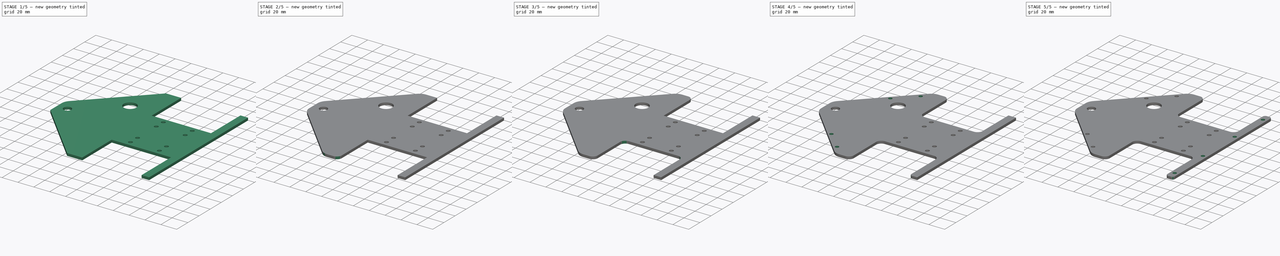
[diagram: build sequence overview — one tinted view per stage of 5, left to right]
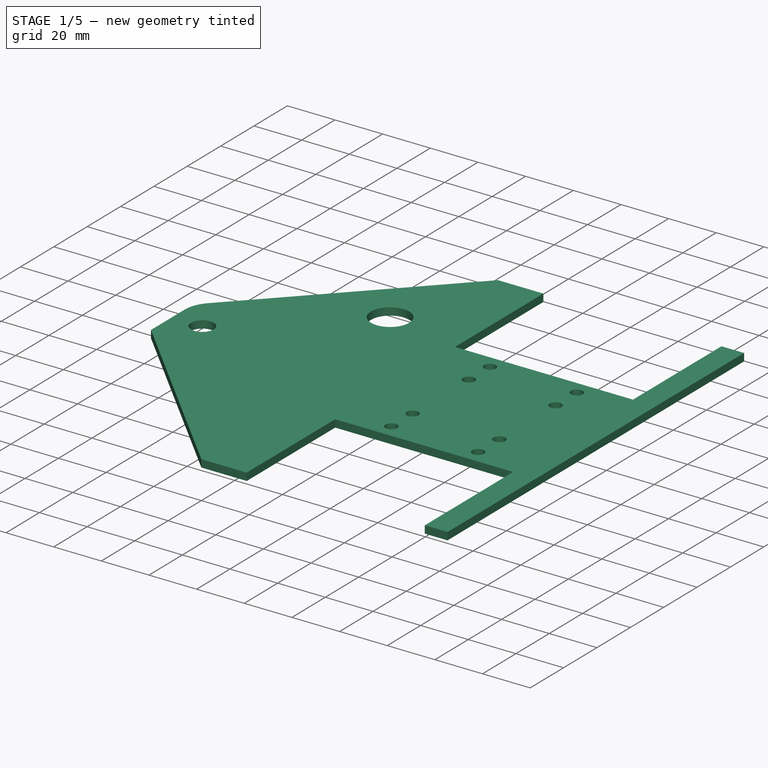
[diagram: stage 1 of 5 — iso view after this stage's code; geometry added in this stage tinted green]
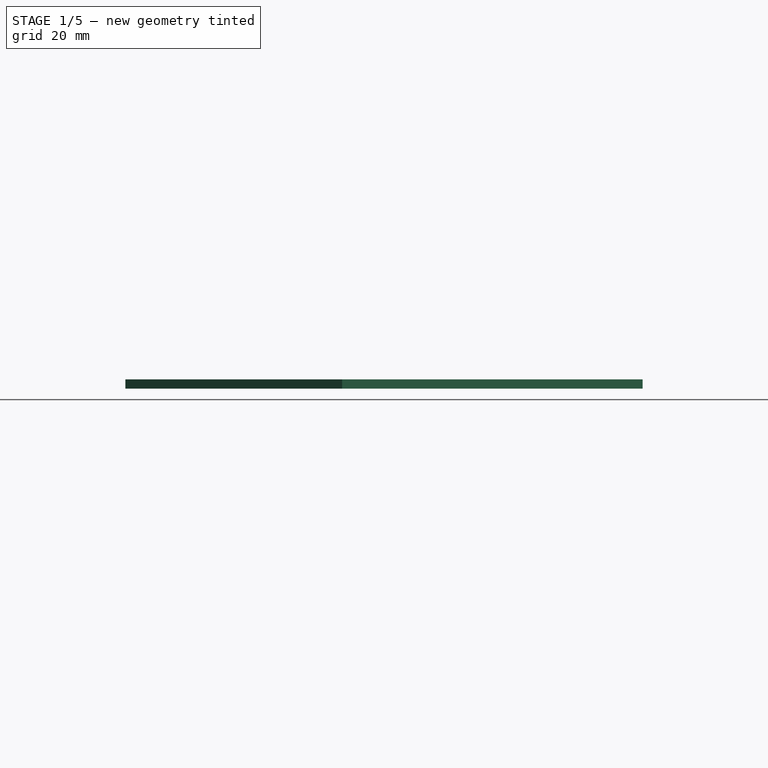
[diagram: stage 1 of 5 — front view after this stage's code; geometry added in this stage tinted green]
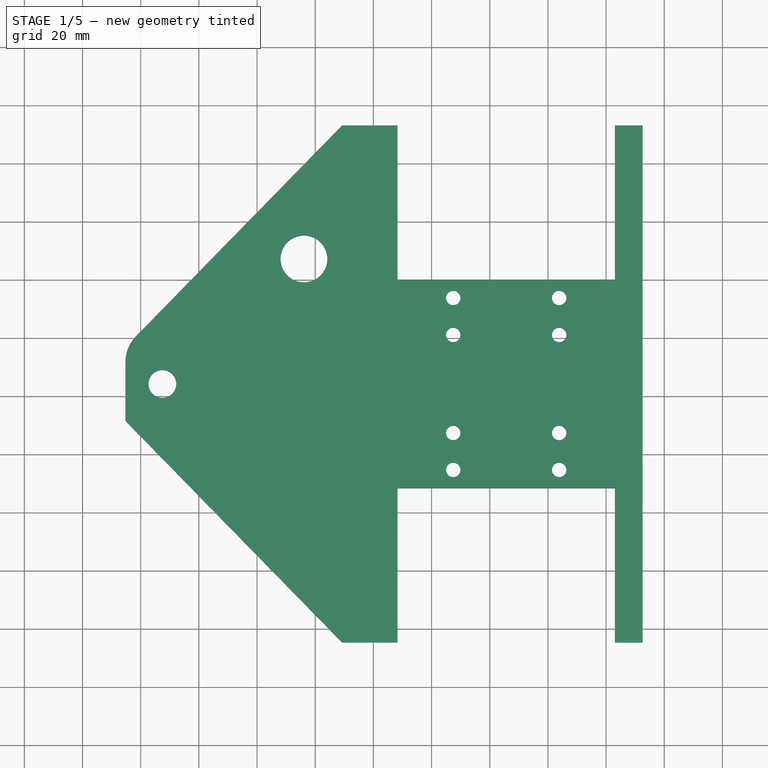
[diagram: stage 1 of 5 — top view after this stage's code; geometry added in this stage tinted green]
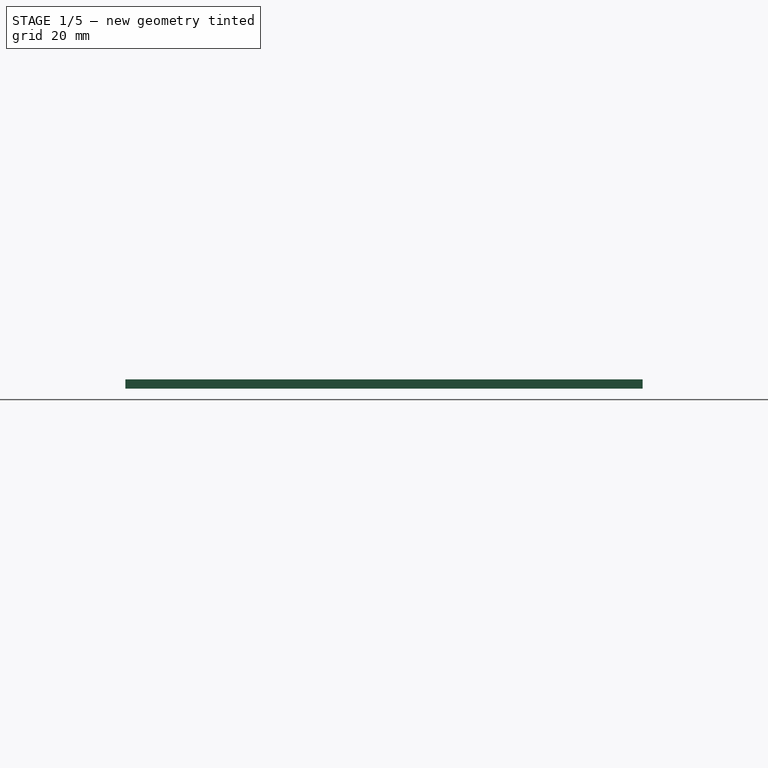
[diagram: stage 1 of 5 — right view after this stage's code; geometry added in this stage tinted green]
FCSTD DOCUMENT  (FreeCAD 0.15R4671 (Git))
Label: plate_bottom
License: All rights reserved
LicenseURL: http://en.wikipedia.org/wiki/All_rights_reserved
objects: PartDesign::Fillet×13, Sketcher::SketchObject×4, PartDesign::Pocket×3, App::DocumentObjectGroup×1, PartDesign::Pad×1
note: 25 computed .brp shape members not serialized (recipe doc carries the construction recipe); baked Part::Feature solids carry a one-line shape summary decoded from their .brp

FEATURE [App::DocumentObjectGroup] Group  label="plate"
FEATURE [Sketcher::SketchObject] Sketch
  Placement = pos=(-14.3421,44.2432,43.6758) rot=(0,0,1;0rad)
  sketch-geometry (17):
    g0: LineSegment StartX=37.364 StartY=35.9029 StartZ=0 EndX=-37.3628 EndY=35.9029 EndZ=0
    g1: LineSegment StartX=-37.3628 StartY=35.9029 StartZ=0 EndX=-37.3628 EndY=88.9 EndZ=0
    g2: LineSegment StartX=-37.3628 StartY=88.9 StartZ=0 EndX=-56.4128 EndY=88.9 EndZ=0
    g3: LineSegment StartX=-56.4128 StartY=88.9 StartZ=0 EndX=-130.912 EndY=12.7006 EndZ=0
    g4: LineSegment StartX=-130.912 StartY=12.7006 StartZ=0 EndX=-130.912 EndY=-12.6994 EndZ=0
    g5: LineSegment StartX=-130.912 StartY=-12.6994 StartZ=0 EndX=-56.414 EndY=-88.9 EndZ=0
    g6: LineSegment StartX=-56.414 StartY=-88.9 StartZ=0 EndX=-37.364 EndY=-88.9 EndZ=0
    g7: LineSegment StartX=-37.364 StartY=-88.9 StartZ=0 EndX=-37.364 EndY=-35.9029 EndZ=0
    g8: LineSegment StartX=-37.364 StartY=-35.9029 StartZ=0 EndX=37.3628 EndY=-35.9029 EndZ=0
    g9: LineSegment StartX=37.3628 StartY=-35.9029 StartZ=0 EndX=37.3628 EndY=-88.9 EndZ=0
    g10: LineSegment StartX=46.8878 StartY=-88.9 StartZ=0 EndX=46.8878 EndY=88.9 EndZ=0
    g11: LineSegment StartX=46.8878 StartY=88.9 StartZ=0 EndX=37.364 EndY=88.9 EndZ=0
    g12: LineSegment StartX=37.364 StartY=88.9 StartZ=0 EndX=37.364 EndY=35.9029 EndZ=0
    g13: GeomPoint [constr] X=-130.912 Y=0.000584 Z=0
    g14: LineSegment [constr] StartX=-130.912 StartY=0.000584 StartZ=0 EndX=-118.212 EndY=0.000584 EndZ=0
    g15: GeomPoint [constr] X=0 Y=35.9029 Z=0
    g16: LineSegment StartX=37.3628 StartY=-88.9 StartZ=0 EndX=46.8878 EndY=-88.9 EndZ=0
  constraints (46):
    c: Horizontal(g0)
    c: Coincident(g0,g1)
    c: Vertical(g1)
    c: Coincident(g1,g2)
    c: Horizontal(g2)
    c: Coincident(g2,g3)
    c: Coincident(g3,g4)
    c: Vertical(g4)
    c: Coincident(g4,g5)
    c: Coincident(g5,g6)
    c: Horizontal(g6)
    c: Coincident(g6,g7)
    c: Vertical(g7)
    c: Coincident(g7,g8)
    c: Horizontal(g8)
    c: Coincident(g8,g9)
    c: Vertical(g9)
    c: Vertical(g10)
    c: Coincident(g10,g11)
    c: Horizontal(g11)
    c: Coincident(g11,g12)
    c: Coincident(g12,g0)
    c: Vertical(g12)
    c: Equal(g12,g9)
    c: Equal(g1,g7)
    c: Equal(g2,g6)
    c: Equal(g3,g5)
    c: Equal(g8,g0)
    c: Equal(g12,g1)
    c: DistanceX(g6) = 19.05
    c: DistanceY(g10) = 177.8
    c: DistanceX(g9,g10) = 9.525
    c: DistanceX(g4,g10) = 177.8
    c: DistanceY(g4,g3) = 25.4
    c: Symmetric(g3,g4,g13)
    c: Horizontal(g14)
    c: DistanceX(g14) = 12.7
    c: Coincident(g14,g13)
    c: DistanceY(g0,g7) = -71.8058
    c: Symmetric(g0,g7,g-1)
    c: DistanceY(g3) = 12.7006
    c: DistanceX(g1,g11) = 74.7268
    c: PointOnObject(g15,g-2)
    c: Horizontal(g16)
    c: Coincident(g16,g10)
    c: Coincident(g16,g9)
FEATURE [PartDesign::Pad] Pad
  Length = 3.175
  Length2 = 100
  Placement = pos=(-14.3421,44.2432,43.6758) rot=(0,0,1;0rad)
  Sketch = -> Sketch
  Type = 0
FEATURE [Sketcher::SketchObject] Sketch001
  ExternalGeometry = -> [Pad]
  Placement = pos=(-14.3421,44.2432,46.8508) rot=(0,0,1;0rad)
  Support = -> Pad [Face16]
  sketch-geometry (14):
    g0: LineSegment [constr] StartX=-130.912 StartY=0.000584 StartZ=0 EndX=-69.5331 EndY=42.9787 EndZ=0
    g1: Circle CenterX=-69.5331 CenterY=42.9787 CenterZ=0 NormalX=0 NormalY=0 NormalZ=1 Radius=8.0264
    g2: Circle CenterX=-118.212 CenterY=0.000584 CenterZ=0 NormalX=0 NormalY=0 NormalZ=1 Radius=4.7625
    g3: LineSegment [constr] StartX=-18.2112 StartY=35.9029 StartZ=0 EndX=-18.2112 EndY=-35.9029 EndZ=0
    g4: LineSegment [constr] StartX=18.2124 StartY=35.9029 StartZ=0 EndX=18.2124 EndY=-35.9029 EndZ=0
    g5: GeomPoint [constr] X=0.000597336 Y=35.9029 Z=0
    g6: Circle CenterX=-18.2112 CenterY=29.5529 CenterZ=0 NormalX=0 NormalY=0 NormalZ=1 Radius=2.46634
    g7: Circle CenterX=18.2124 CenterY=29.5529 CenterZ=0 NormalX=0 NormalY=0 NormalZ=1 Radius=2.46634
    g8: Circle CenterX=-18.2112 CenterY=16.8529 CenterZ=0 NormalX=0 NormalY=0 NormalZ=1 Radius=2.46634
    g9: Circle CenterX=18.2124 CenterY=16.8529 CenterZ=0 NormalX=0 NormalY=0 NormalZ=1 Radius=2.46634
    g10: Circle CenterX=-18.2112 CenterY=-16.8529 CenterZ=0 NormalX=0 NormalY=0 NormalZ=1 Radius=2.46634
    g11: Circle CenterX=18.2124 CenterY=-16.8529 CenterZ=0 NormalX=0 NormalY=0 NormalZ=1 Radius=2.46634
    g12: Circle CenterX=-18.2112 CenterY=-29.5529 CenterZ=0 NormalX=0 NormalY=0 NormalZ=1 Radius=2.46634
    g13: Circle CenterX=18.2124 CenterY=-29.5529 CenterZ=0 NormalX=0 NormalY=0 NormalZ=1 Radius=2.46634
  constraints (41):
    c: Angle(g0) = 0.610865
    c: Distance(g0) = 74.93
    c: Radius(g1) = 8.0264
    c: Coincident(g1,g0)
    c: Radius(g2) = 4.7625
    c: Symmetric(g-3,g-3,g0)
    c: DistanceX(g2,g0) = -12.7
    c: DistanceY(g2,g0) = 0
    c: PointOnObject(g3,g-4)
    c: Vertical(g3)
    c: PointOnObject(g4,g-4)
    c: PointOnObject(g4,g-5)
    c: Vertical(g4)
    c: DistanceX(g3,g4) = 36.4236
    c: Symmetric(g-4,g-4,g5)
    c: Symmetric(g3,g4,g5)
    c: DistanceY(g3,g-5) = 0
    c: PointOnObject(g6,g3)
    c: PointOnObject(g7,g4)
    c: PointOnObject(g8,g3)
    c: PointOnObject(g9,g4)
    c: PointOnObject(g10,g3)
    c: PointOnObject(g11,g4)
    c: PointOnObject(g12,g3)
    c: PointOnObject(g13,g4)
    c: Radius(g13) = 2.46634
    c: Equal(g13,g11)
    c: Equal(g13,g9)
    c: Equal(g13,g7)
    c: Equal(g13,g6)
    c: Equal(g13,g8)
    c: Equal(g13,g10)
    c: Equal(g13,g12)
    c: DistanceY(g6,g3) = 6.35
    c: DistanceY(g8,g6) = 12.7
    c: DistanceY(g7,g4) = 6.35
    c: DistanceY(g9,g7) = 12.7
    c: DistanceY(g12,g-5) = -6.35
    c: DistanceY(g13,g-5) = -6.35
    c: DistanceY(g10,g12) = -12.7
    c: DistanceY(g11,g13) = -12.7
FEATURE [PartDesign::Pocket] Pocket
  Length = 0
  Placement = pos=(-14.3421,44.2432,43.6758) rot=(0,0,1;0rad)
  Sketch = -> Sketch001
  Type = 1
FEATURE [PartDesign::Fillet] Fillet
  Base = -> Pocket [Edge56]
  Placement = pos=(-14.3421,44.2432,43.6758) rot=(0,0,1;0rad)
  Radius = 12.7
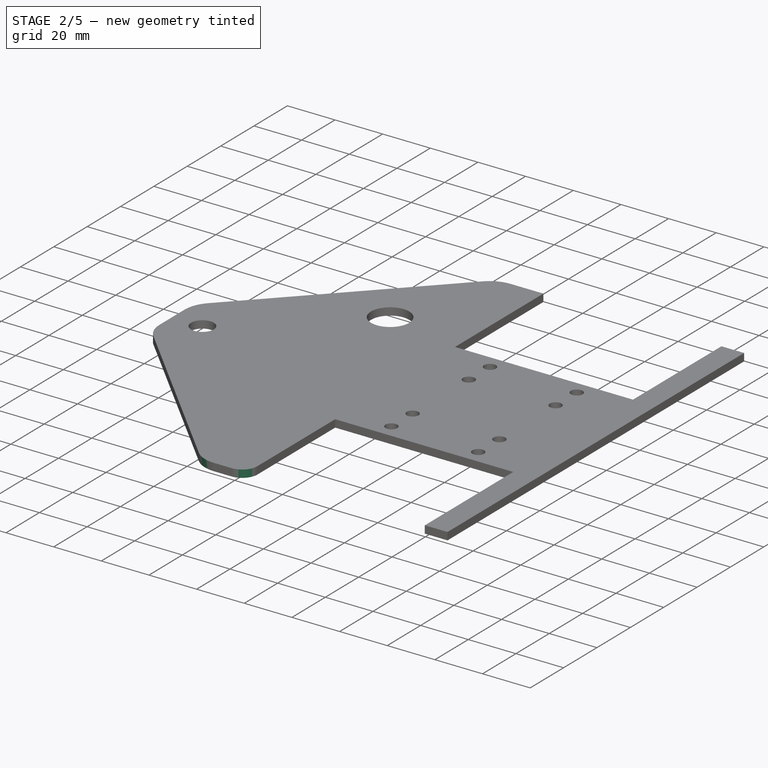
[diagram: stage 2 of 5 — iso view after this stage's code; geometry added in this stage tinted green]
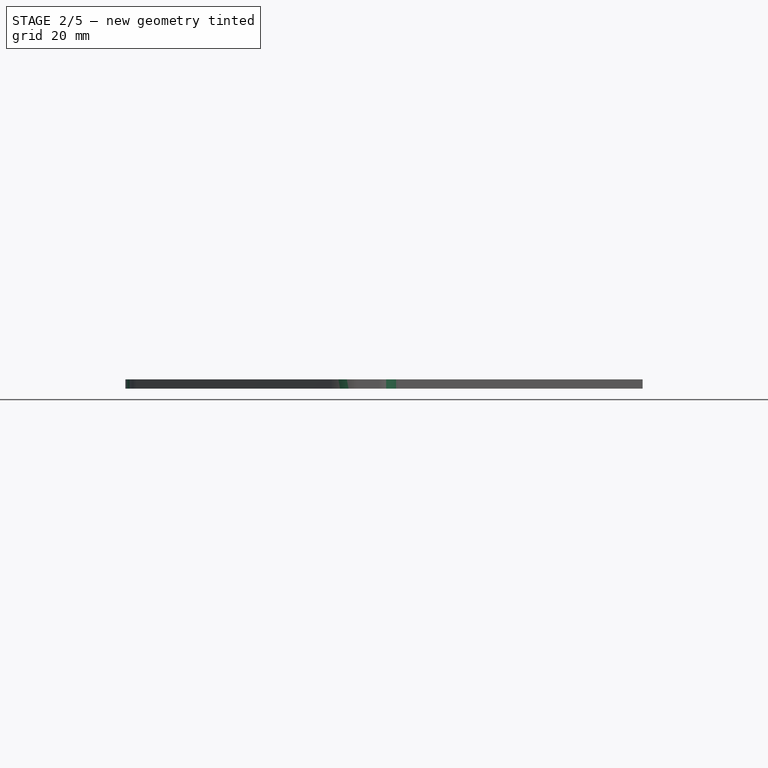
[diagram: stage 2 of 5 — front view after this stage's code; geometry added in this stage tinted green]
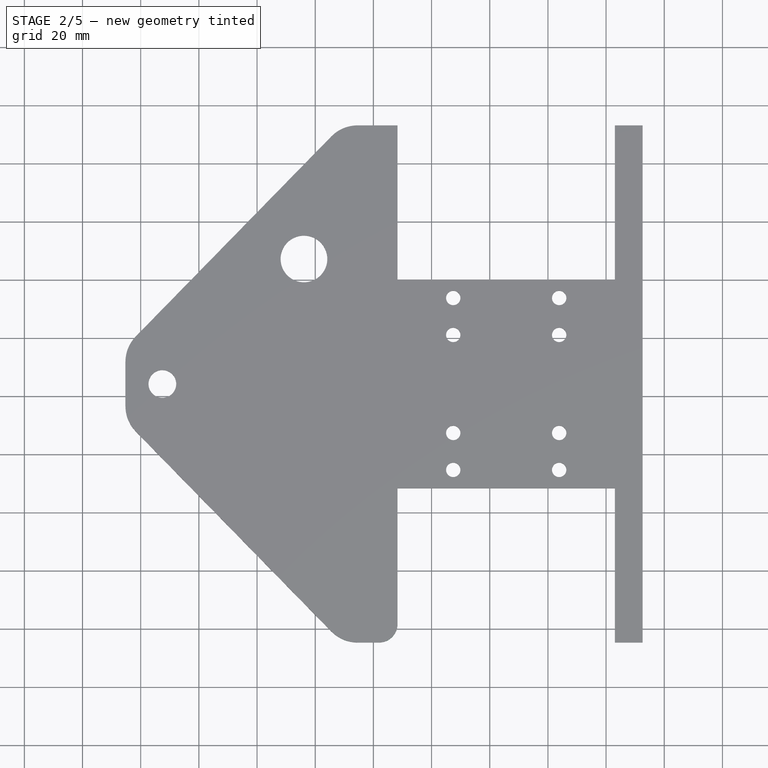
[diagram: stage 2 of 5 — top view after this stage's code; geometry added in this stage tinted green]
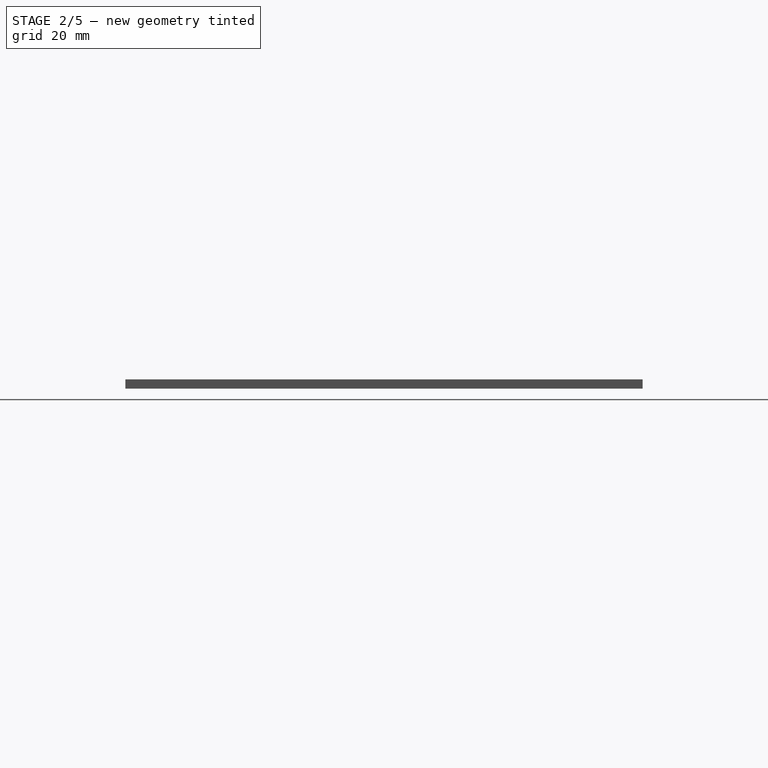
[diagram: stage 2 of 5 — right view after this stage's code; geometry added in this stage tinted green]
FEATURE [PartDesign::Fillet] Fillet001
  Base = -> Fillet [Edge33]
  Placement = pos=(-14.3421,44.2432,43.6758) rot=(0,0,1;0rad)
  Radius = 12.7
FEATURE [PartDesign::Fillet] Fillet002
  Base = -> Fillet001 [Edge34]
  Placement = pos=(-14.3421,44.2432,43.6758) rot=(0,0,1;0rad)
  Radius = 12.7
FEATURE [PartDesign::Fillet] Fillet003
  Base = -> Fillet002 [Edge45]
  Placement = pos=(-14.3421,44.2432,43.6758) rot=(0,0,1;0rad)
  Radius = 12.7
FEATURE [PartDesign::Fillet] Fillet004
  Base = -> Fillet003 [Edge54]
  Placement = pos=(-14.3421,44.2432,43.6758) rot=(0,0,1;0rad)
  Radius = 6.35
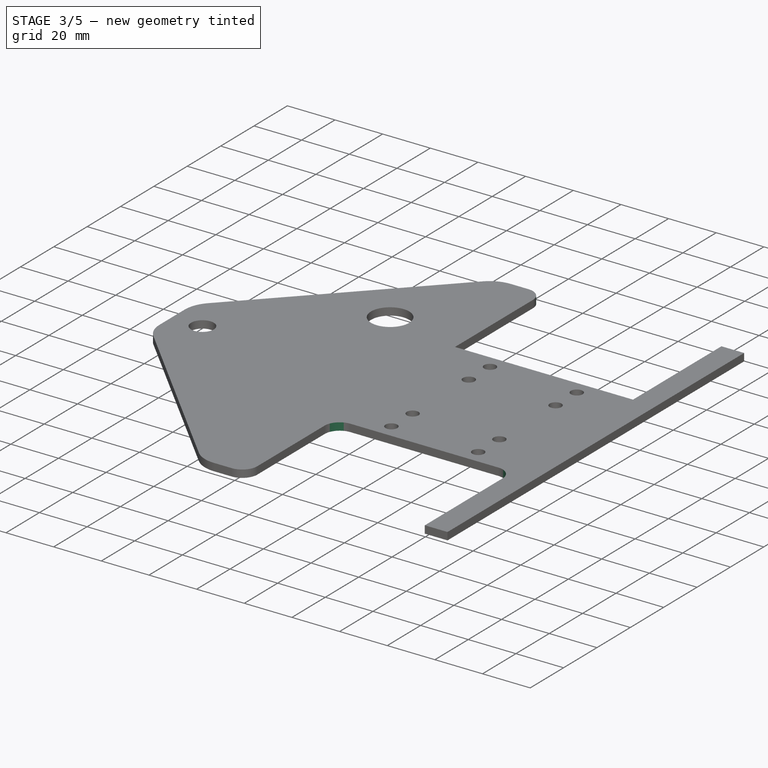
[diagram: stage 3 of 5 — iso view after this stage's code; geometry added in this stage tinted green]
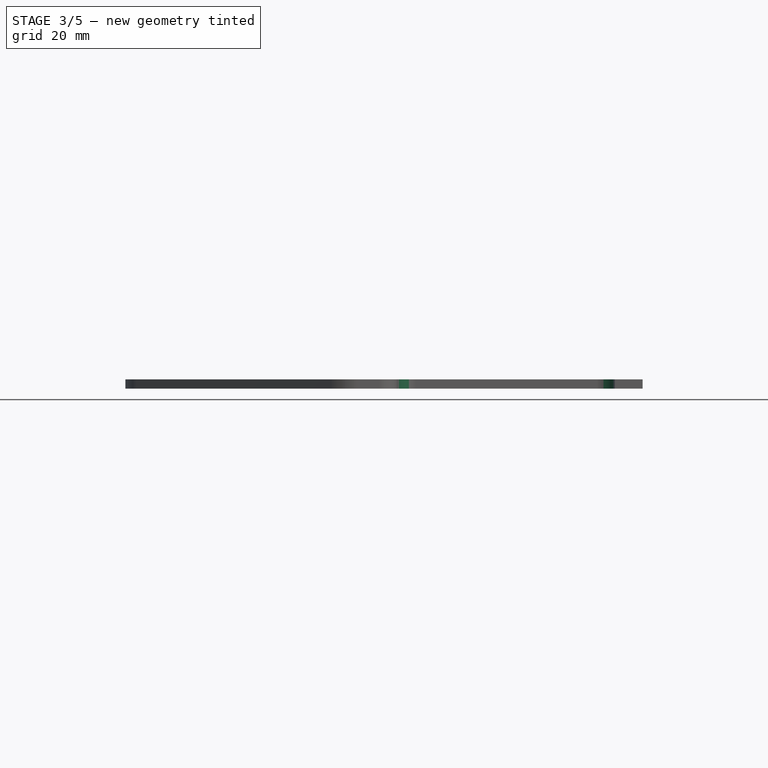
[diagram: stage 3 of 5 — front view after this stage's code; geometry added in this stage tinted green]
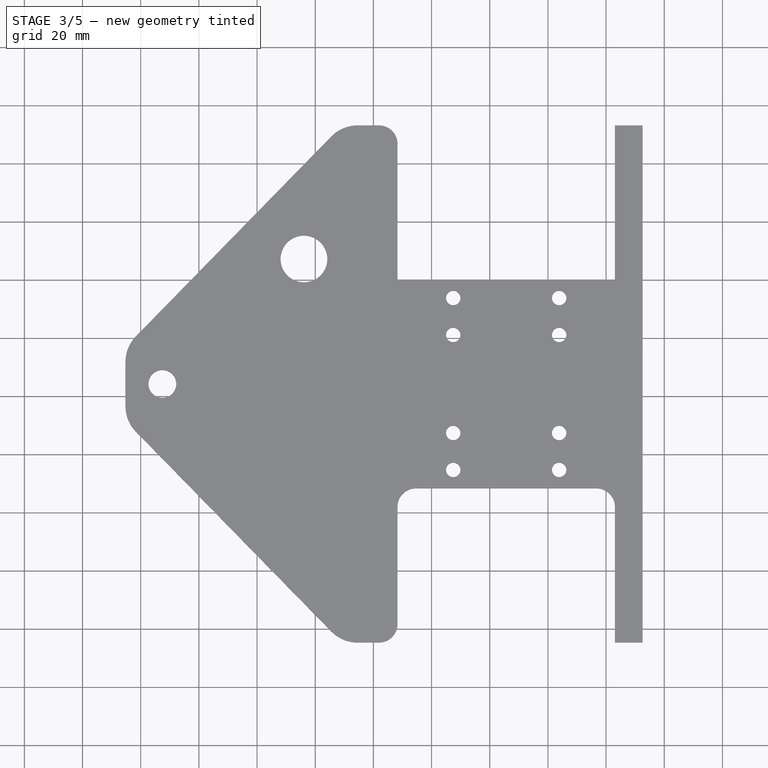
[diagram: stage 3 of 5 — top view after this stage's code; geometry added in this stage tinted green]
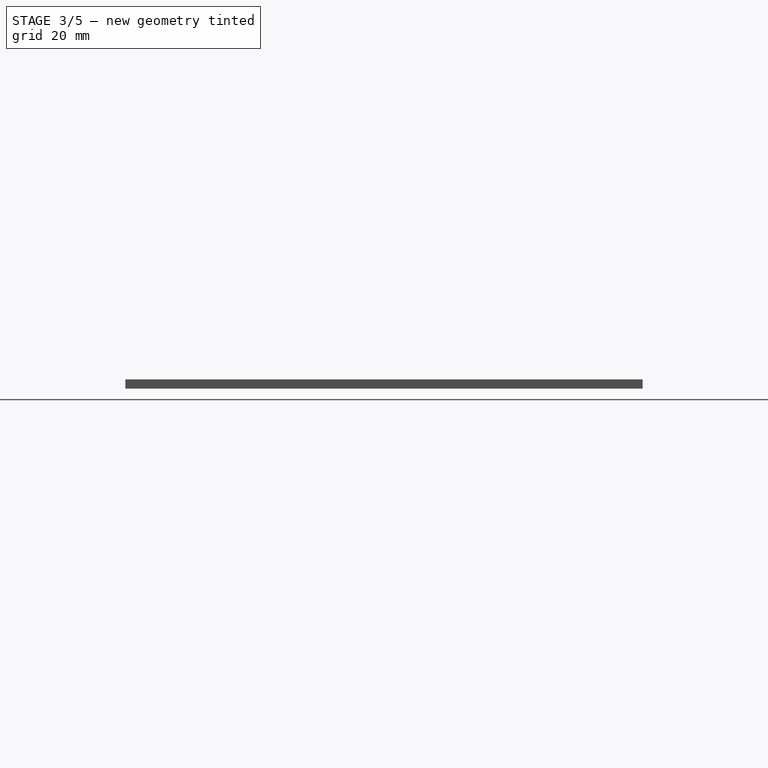
[diagram: stage 3 of 5 — right view after this stage's code; geometry added in this stage tinted green]
FEATURE [PartDesign::Fillet] Fillet005
  Base = -> Fillet004 [Edge63]
  Placement = pos=(-14.3421,44.2432,43.6758) rot=(0,0,1;0rad)
  Radius = 6.35
FEATURE [PartDesign::Fillet] Fillet006
  Base = -> Fillet005 [Edge66]
  Placement = pos=(-14.3421,44.2432,43.6758) rot=(0,0,1;0rad)
  Radius = 6.35
FEATURE [PartDesign::Fillet] Fillet007
  Base = -> Fillet006 [Edge33]
  Placement = pos=(-14.3421,44.2432,43.6758) rot=(0,0,1;0rad)
  Radius = 6.35
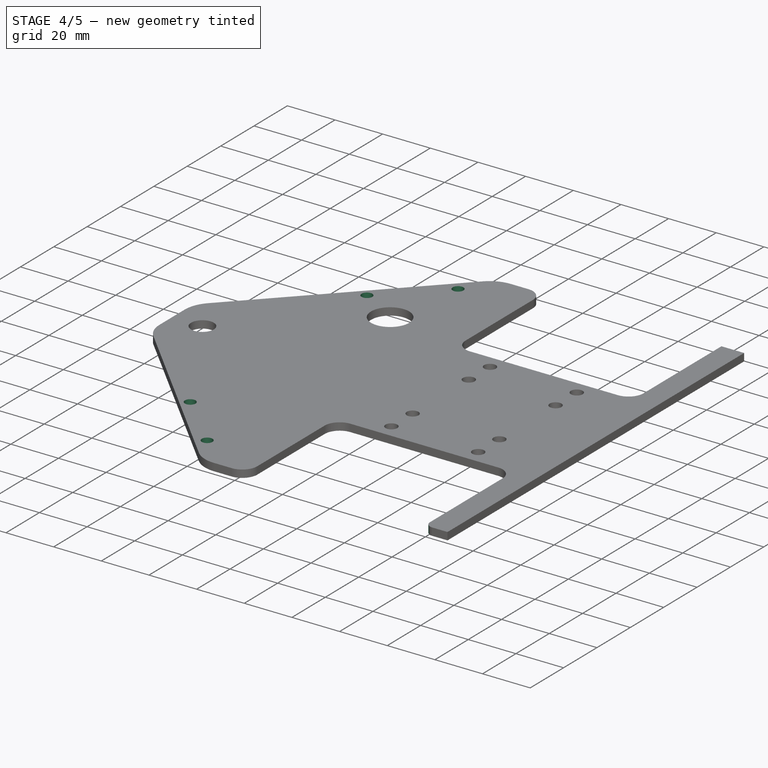
[diagram: stage 4 of 5 — iso view after this stage's code; geometry added in this stage tinted green]
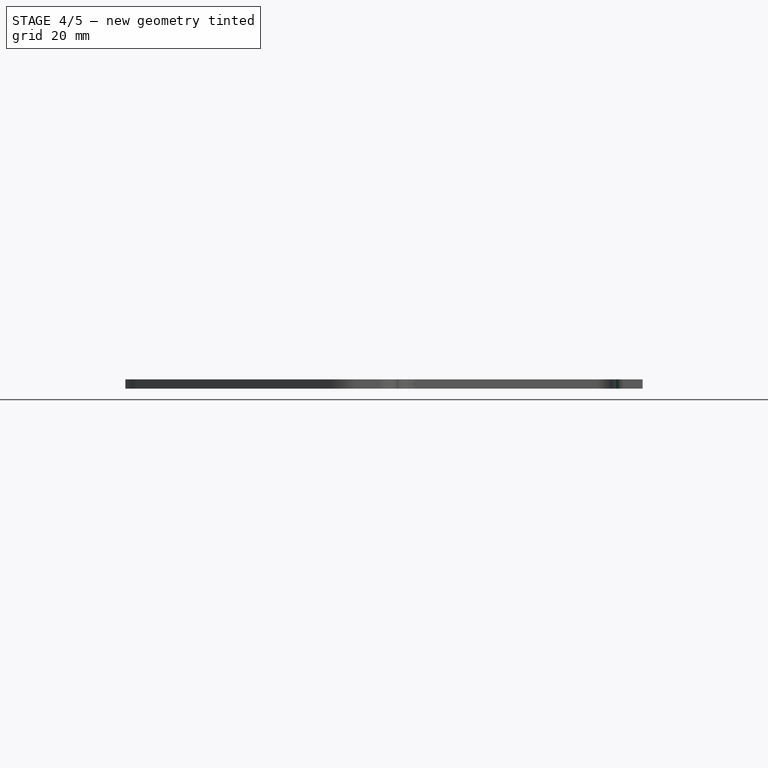
[diagram: stage 4 of 5 — front view after this stage's code; geometry added in this stage tinted green]
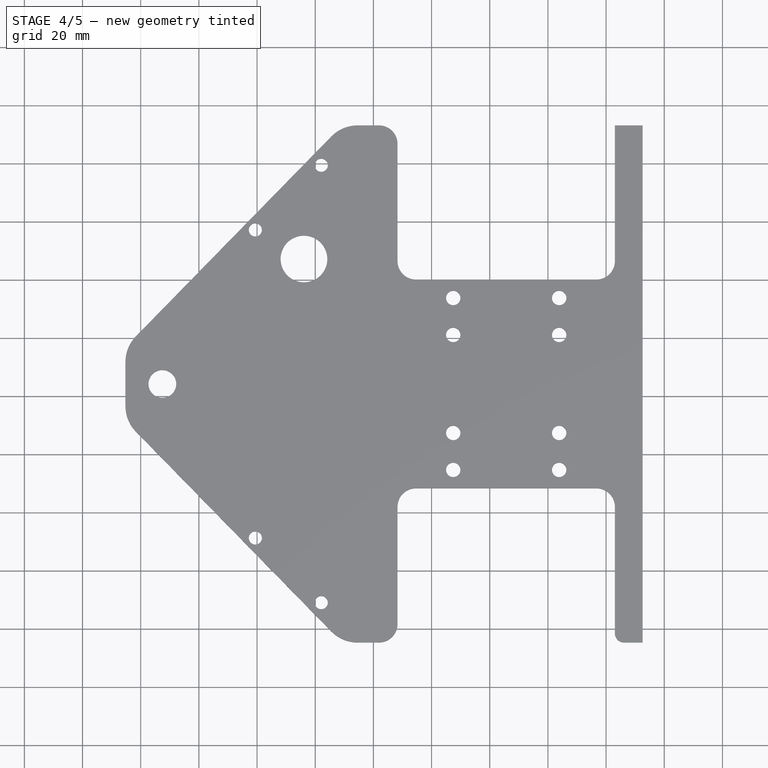
[diagram: stage 4 of 5 — top view after this stage's code; geometry added in this stage tinted green]
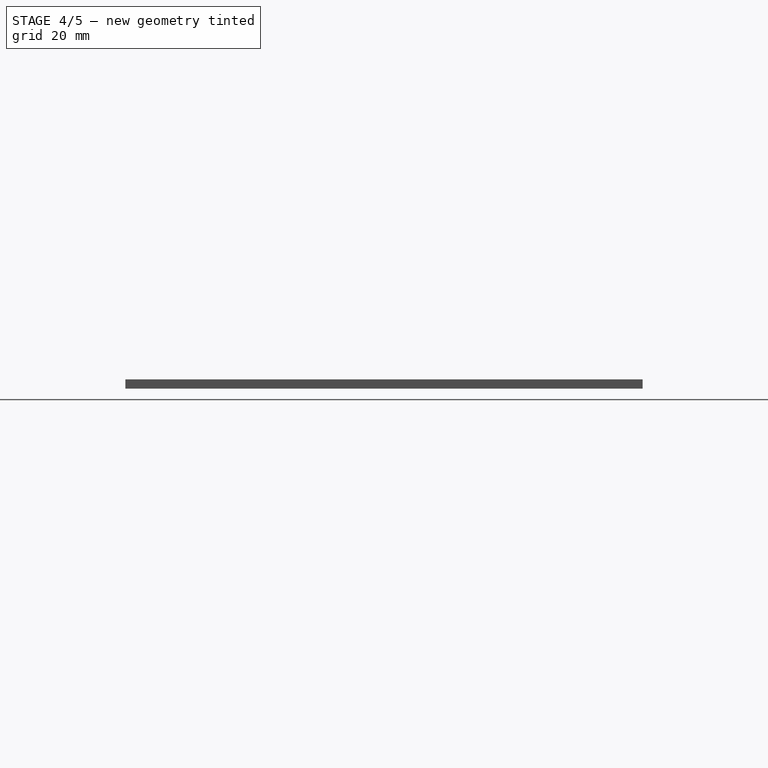
[diagram: stage 4 of 5 — right view after this stage's code; geometry added in this stage tinted green]
FEATURE [PartDesign::Fillet] Fillet008
  Base = -> Fillet007 [Edge40]
  Placement = pos=(-14.3421,44.2432,43.6758) rot=(0,0,1;0rad)
  Radius = 3.175
FEATURE [Sketcher::SketchObject] Sketch002
  Placement = pos=(-14.3421,44.2432,46.8508) rot=(0,0,1;0rad)
  Support = -> Fillet008 [Face35]
  sketch-geometry (10):
    g0: LineSegment [constr] StartX=-86.2463 StartY=52.9615 StartZ=0 EndX=-63.5815 EndY=75.1959 EndZ=0
    g1: LineSegment [constr] StartX=-86.247 StartY=-52.9609 StartZ=0 EndX=-63.5825 EndY=-75.1957 EndZ=0
    g2: LineSegment [constr] StartX=-60.1173 StartY=85.2659 StartZ=0 EndX=-56.7821 EndY=81.8662 EndZ=0
    g3: LineSegment [constr] StartX=-56.7821 StartY=81.8662 StartZ=0 EndX=-63.5815 EndY=75.1959 EndZ=0
    g4: LineSegment [constr] StartX=-60.1184 StartY=-85.2658 StartZ=0 EndX=-56.7832 EndY=-81.8661 EndZ=0
    g5: LineSegment [constr] StartX=-63.5825 StartY=-75.1957 StartZ=0 EndX=-56.7832 EndY=-81.8661 EndZ=0
    g6: Circle CenterX=-63.5815 CenterY=75.1959 CenterZ=0 NormalX=0 NormalY=0 NormalZ=1 Radius=2.2479
    g7: Circle CenterX=-86.2463 CenterY=52.9615 CenterZ=0 NormalX=0 NormalY=0 NormalZ=1 Radius=2.2479
    g8: Circle CenterX=-86.247 CenterY=-52.9609 CenterZ=0 NormalX=0 NormalY=0 NormalZ=1 Radius=2.2479
    g9: Circle CenterX=-63.5825 CenterY=-75.1957 CenterZ=0 NormalX=0 NormalY=0 NormalZ=1 Radius=2.2479
  constraints (18):
    c: Distance(g0) = 31.75
    c: Distance(g1) = 31.75
    c: Distance(g2) = 4.7625
    c: Distance(g3) = 9.525
    c: Coincident(g3,g2)
    c: Coincident(g0,g3)
    c: Distance(g4) = 4.7625
    c: Distance(g5) = 9.525
    c: Coincident(g5,g4)
    c: Coincident(g1,g5)
    c: Radius(g9) = 2.2479
    c: Equal(g9,g8)
    c: Equal(g9,g7)
    c: Equal(g9,g6)
    c: Coincident(g7,g0)
    c: Coincident(g6,g0)
    c: Coincident(g8,g1)
    c: Coincident(g9,g1)
FEATURE [PartDesign::Pocket] Pocket001
  Length = 4.99999
  Placement = pos=(-14.3421,44.2432,43.6758) rot=(0,0,1;0rad)
  Sketch = -> Sketch002
  Type = 1
FEATURE [PartDesign::Fillet] Fillet009
  Base = -> Pocket001 [Edge61]
  Placement = pos=(-14.3421,44.2432,43.6758) rot=(0,0,1;0rad)
  Radius = 6.35
FEATURE [PartDesign::Fillet] Fillet010
  Base = -> Fillet009 [Edge40]
  Placement = pos=(-14.3421,44.2432,43.6758) rot=(0,0,1;0rad)
  Radius = 6.35
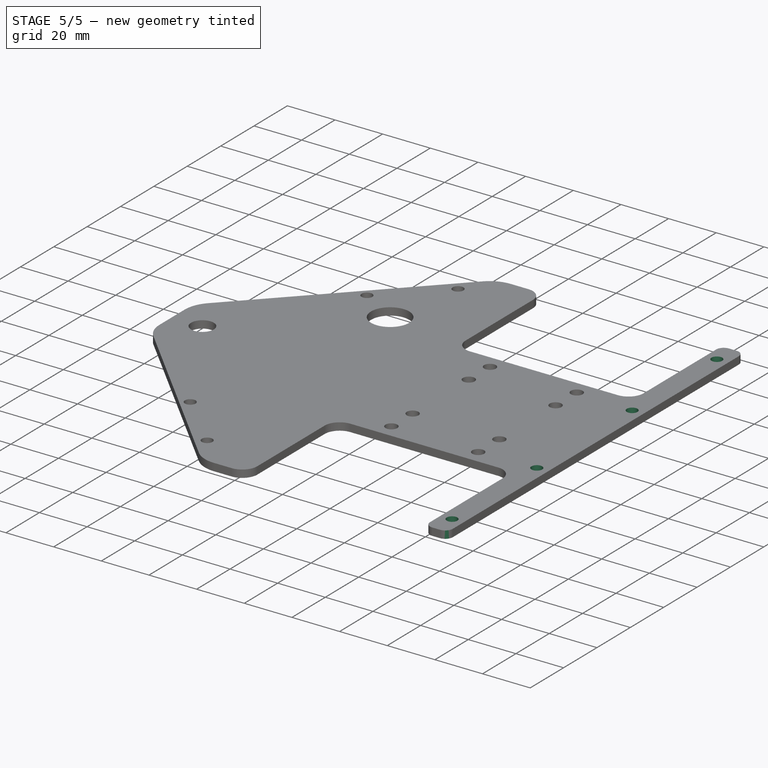
[diagram: stage 5 of 5 — iso view after this stage's code; geometry added in this stage tinted green]
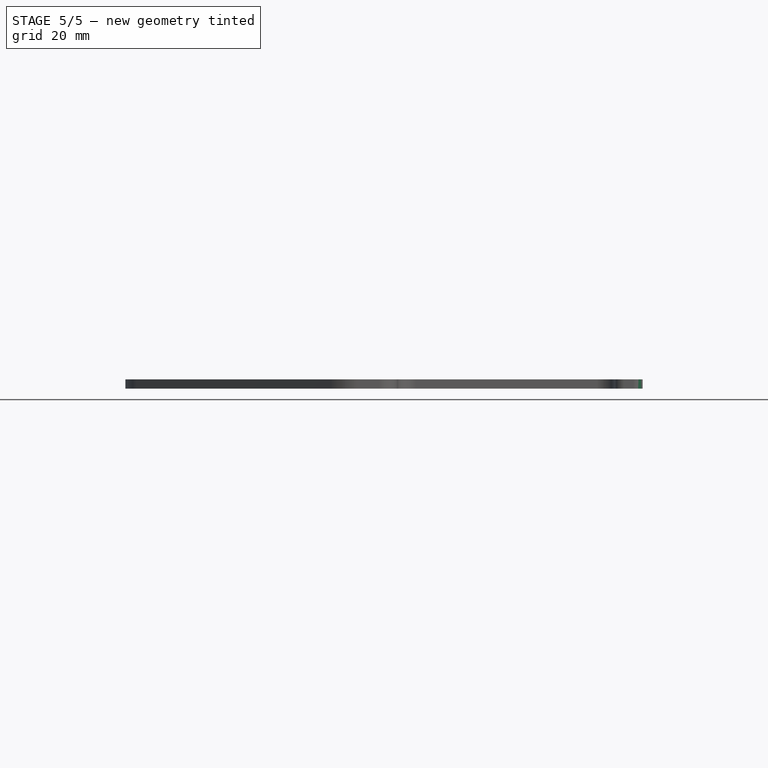
[diagram: stage 5 of 5 — front view after this stage's code; geometry added in this stage tinted green]
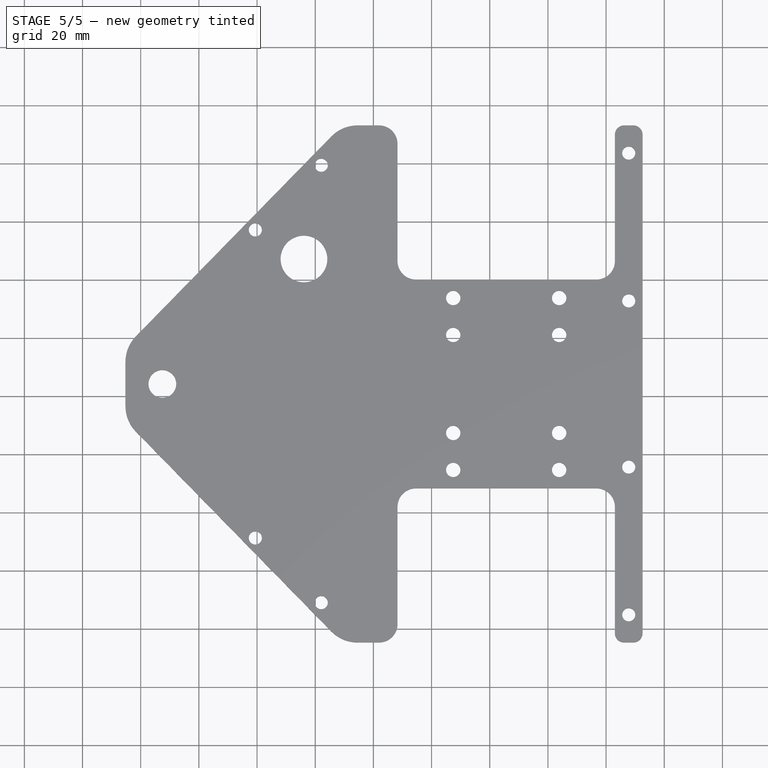
[diagram: stage 5 of 5 — top view after this stage's code; geometry added in this stage tinted green]
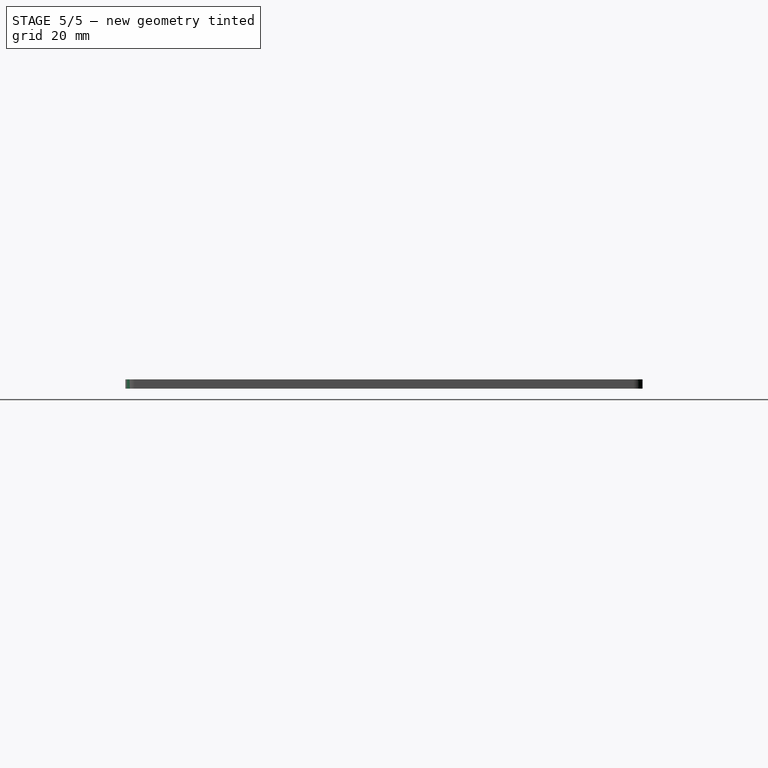
[diagram: stage 5 of 5 — right view after this stage's code; geometry added in this stage tinted green]
FEATURE [PartDesign::Fillet] Fillet011
  Base = -> Fillet010 [Edge47,Edge51]
  Placement = pos=(-14.3421,44.2432,43.6758) rot=(0,0,1;0rad)
  Radius = 3.175
FEATURE [PartDesign::Fillet] Fillet012
  Base = -> Fillet011 [Edge57]
  Placement = pos=(-14.3421,44.2432,43.6758) rot=(0,0,1;0rad)
  Radius = 3.175
FEATURE [Sketcher::SketchObject] Sketch003
  ExternalGeometry = -> [Fillet012]
  Placement = pos=(-14.3421,44.2432,46.8508) rot=(0,0,1;0rad)
  Support = -> Fillet012 [Face44]
  sketch-geometry (6):
    g0: Circle CenterX=42.1253 CenterY=-28.575 CenterZ=0 NormalX=0 NormalY=0 NormalZ=1 Radius=2.2479
    g1: Circle CenterX=42.1253 CenterY=79.375 CenterZ=0 NormalX=0 NormalY=0 NormalZ=1 Radius=2.2479
    g2: Circle CenterX=42.1253 CenterY=-79.375 CenterZ=0 NormalX=0 NormalY=0 NormalZ=1 Radius=2.2479
    g3: Circle CenterX=42.1253 CenterY=28.575 CenterZ=0 NormalX=0 NormalY=0 NormalZ=1 Radius=2.2479
    g4: LineSegment [constr] StartX=42.1253 StartY=79.375 StartZ=0 EndX=42.1253 EndY=28.575 EndZ=0
    g5: LineSegment [constr] StartX=42.1253 StartY=-28.575 StartZ=0 EndX=42.1253 EndY=-79.375 EndZ=0
  constraints (16):
    c: Radius(g1) = 2.2479
    c: Equal(g1,g2)
    c: Equal(g1,g3)
    c: Equal(g1,g0)
    c: Vertical(g4)
    c: DistanceY(g4) = -50.8
    c: Vertical(g5)
    c: DistanceY(g5) = -50.8
    c: DistanceX(g2,g-5) = 4.7625
    c: DistanceY(g2,g-7) = -9.525
    c: Coincident(g5,g2)
    c: Coincident(g0,g5)
    c: DistanceX(g1,g-5) = 4.7625
    c: DistanceY(g-4,g1) = -9.525
    c: Coincident(g4,g1)
    c: Coincident(g3,g4)
FEATURE [PartDesign::Pocket] Pocket002
  Length = 4.99999
  Placement = pos=(-14.3421,44.2432,43.6758) rot=(0,0,1;0rad)
  Sketch = -> Sketch003
  Type = 1
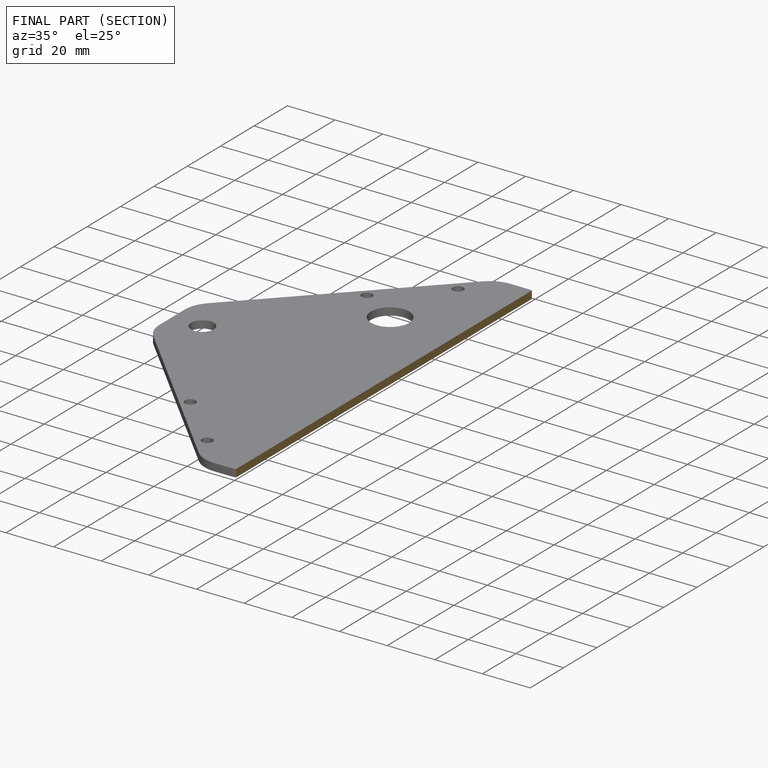
[diagram: finished part — half-section view (interior)]
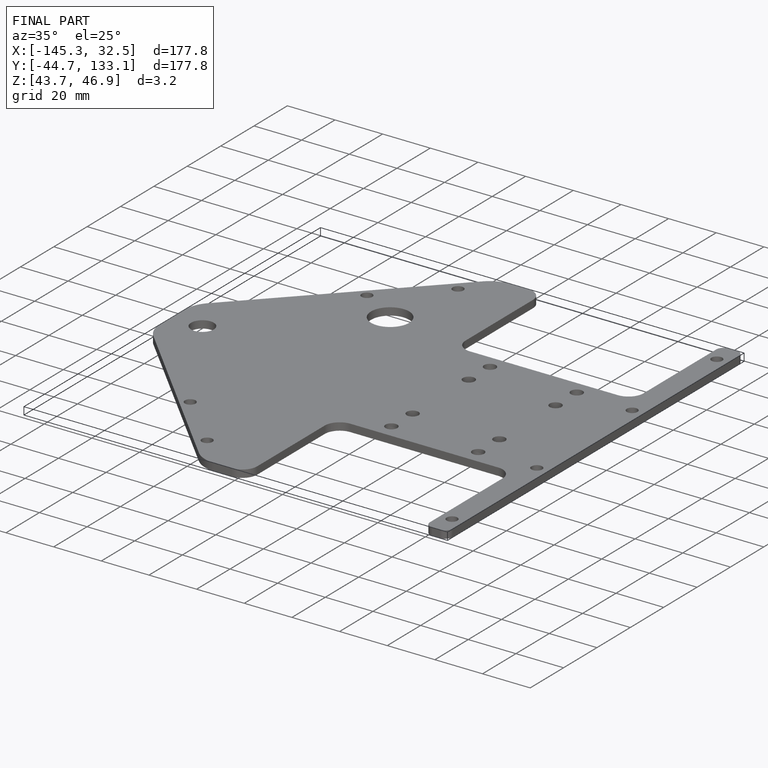
[diagram: finished part — iso view with bounding-box wireframe]
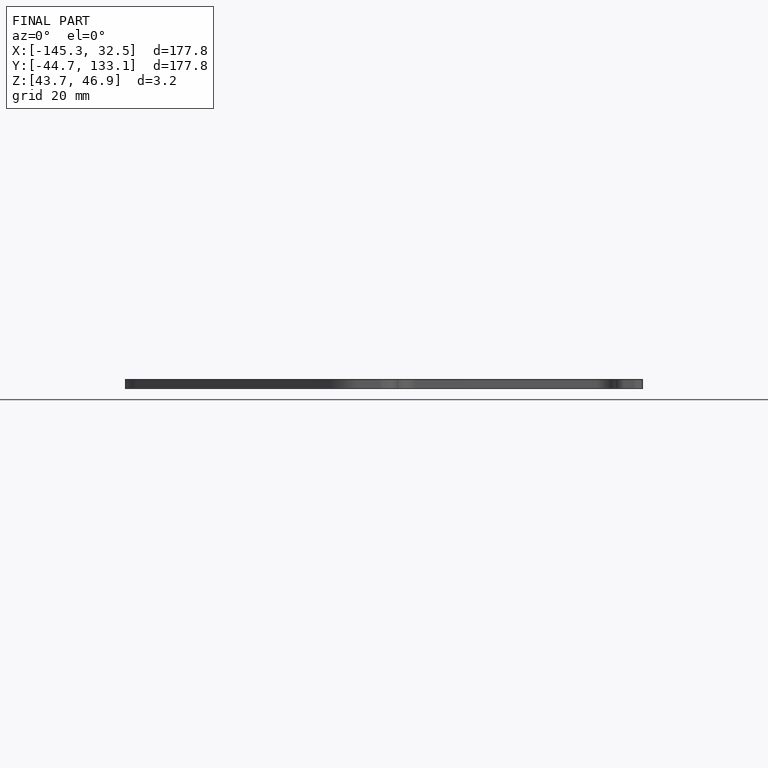
[diagram: finished part — front view with bounding-box wireframe]
